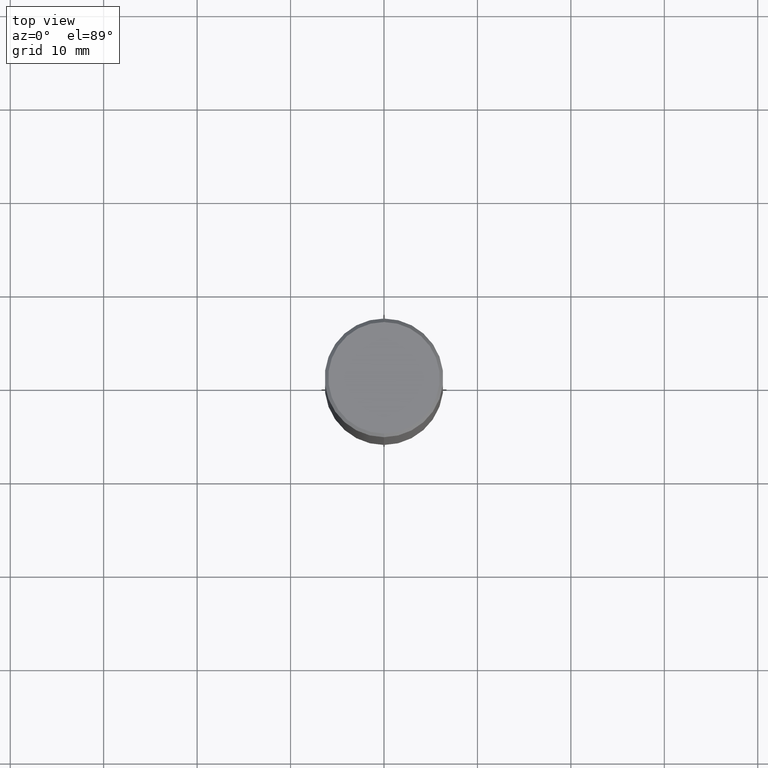
[diagram: clean part render]
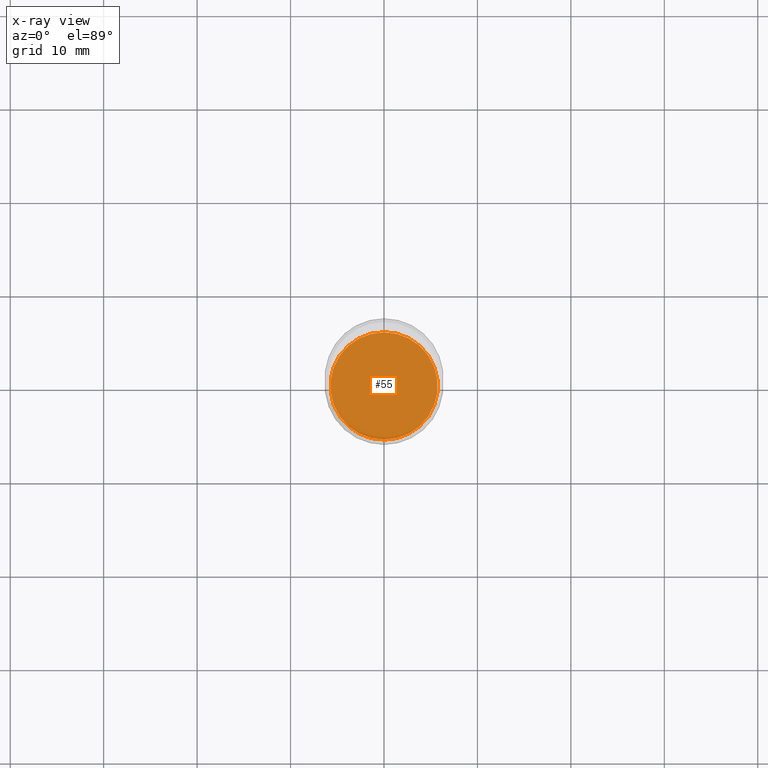
[diagram: x-ray — body ghosted, one internal face saturated and labeled with its STEP entity id]
A machine part, top view, then the same camera in x-ray: the body is ghosted and one INTERNAL B-rep face — a face not visible from any outside direction — is saturated and labeled: STEP entity #55.
In plain terms, the highlighted planar face has unit normal (-0, 0, 1).
Its self-contained STEP definition (entity closure, byte-faithful):
#20 = AXIS2_PLACEMENT_3D ( 'NONE', #231, #387, #195 ) ;
#55 = ADVANCED_FACE ( 'NONE', ( #157 ), #77, .F. ) ;
#65 = CIRCLE ( 'NONE', #100, 0.2260500000000000287 ) ;
#77 = PLANE ( 'NONE',  #20 ) ;
#98 = ORIENTED_EDGE ( 'NONE', *, *, #347, .F. ) ;
#100 = AXIS2_PLACEMENT_3D ( 'NONE', #133, #135, #458 ) ;
#133 = CARTESIAN_POINT ( 'NONE',  ( 4.891107415626128608E-29, -6.982719509759306788E-15, -2.000000000000000444 ) ) ;
#135 = DIRECTION ( 'NONE',  ( -2.445553707813064024E-29, 3.491359754879653000E-15, 1.000000000000000000 ) ) ;
#157 = FACE_OUTER_BOUND ( 'NONE', #167, .T. ) ;
#167 = EDGE_LOOP ( 'NONE', ( #98, #227 ) ) ;
#195 = DIRECTION ( 'NONE',  ( -6.982962677686265922E-15, -1.000000000000000000, 3.491359754879653000E-15 ) ) ;
#206 = CIRCLE ( 'NONE', #330, 0.2260500000000000287 ) ;
#227 = ORIENTED_EDGE ( 'NONE', *, *, #508, .F. ) ;
#229 = VERTEX_POINT ( 'NONE', #422 ) ;
#231 = CARTESIAN_POINT ( 'NONE',  ( 4.891107415626128608E-29, -6.982719509759306788E-15, -2.000000000000000444 ) ) ;
#244 = CARTESIAN_POINT ( 'NONE',  ( 4.891107415626128608E-29, -6.982719509759306788E-15, -2.000000000000000444 ) ) ;
#282 = DIRECTION ( 'NONE',  ( -6.982962677686265133E-15, -1.000000000000000000, 3.625544782567037861E-15 ) ) ;
#326 = DIRECTION ( 'NONE',  ( -2.445553707813064024E-29, 3.491359754879653000E-15, 1.000000000000000000 ) ) ;
#330 = AXIS2_PLACEMENT_3D ( 'NONE', #244, #326, #282 ) ;
#347 = EDGE_CURVE ( 'NONE', #229, #384, #65, .T. ) ;
#384 = VERTEX_POINT ( 'NONE', #392 ) ;
#387 = DIRECTION ( 'NONE',  ( -2.445553707813063743E-29, 3.491359754879653000E-15, 1.000000000000000000 ) ) ;
#392 = CARTESIAN_POINT ( 'NONE',  ( 1.607958211025155638E-15, 0.2260499999999930620, -2.000000000000000888 ) ) ;
#422 = CARTESIAN_POINT ( 'NONE',  ( -1.578498713290931613E-15, -0.2260500000000069953, -1.999999999999999334 ) ) ;
#458 = DIRECTION ( 'NONE',  ( -6.982962677686265133E-15, -1.000000000000000000, 3.625544782567037861E-15 ) ) ;
#508 = EDGE_CURVE ( 'NONE', #384, #229, #206, .T. ) ;